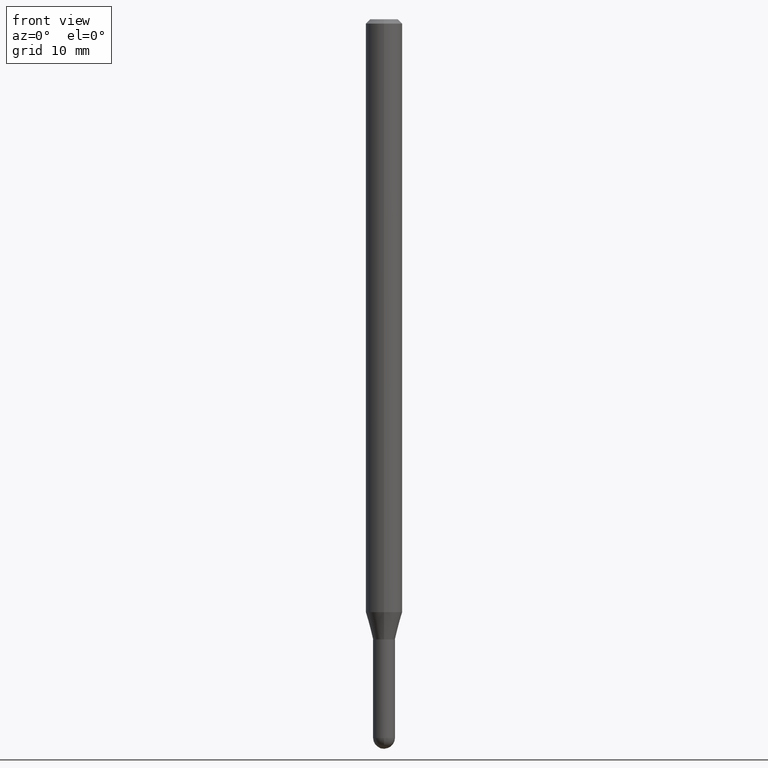
[diagram: clean part render]
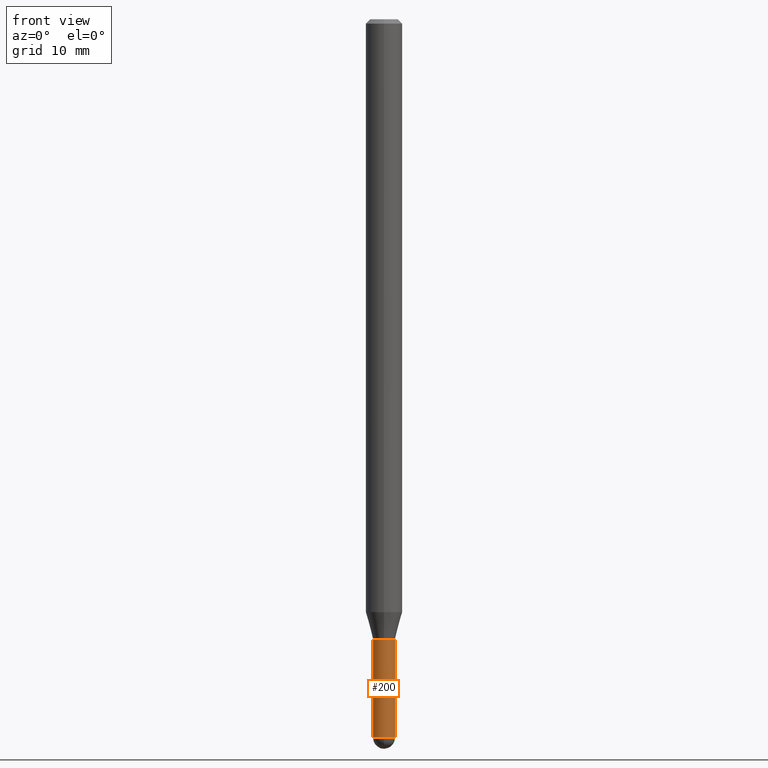
[diagram: same view with one face highlighted and labeled with its STEP entity id]
A machine part, front view. The second image highlights one B-rep face of the part: STEP entity #200.
In plain terms, the highlighted cylindrical surface (edge-blend (fillet) strip) has radius 0.9525 mm, axis along (-0, 0, 1).
Its self-contained STEP definition (entity closure, byte-faithful):
#32 = DIRECTION ( 'NONE',  ( -2.445468806185136877E-29, 3.491481338843145188E-15, 1.000000000000000000 ) ) ;
#44 = EDGE_LOOP ( 'NONE', ( #297, #128, #151, #377, #136 ) ) ;
#58 = EDGE_CURVE ( 'NONE', #252, #478, #306, .T. ) ;
#65 = VECTOR ( 'NONE', #309, 39.37007874015748143 ) ;
#128 = ORIENTED_EDGE ( 'NONE', *, *, #265, .T. ) ;
#130 = CARTESIAN_POINT ( 'NONE',  ( -0.03749999999999999861, -7.742131795061429304E-15, -2.125000000000000000 ) ) ;
#136 = ORIENTED_EDGE ( 'NONE', *, *, #503, .F. ) ;
#137 = AXIS2_PLACEMENT_3D ( 'NONE', #397, #166, #234 ) ;
#139 = CARTESIAN_POINT ( 'NONE',  ( -0.03749999999999999861, -7.742131795061429304E-15, -2.462500000000000355 ) ) ;
#143 = EDGE_CURVE ( 'NONE', #486, #252, #199, .T. ) ;
#151 = ORIENTED_EDGE ( 'NONE', *, *, #143, .T. ) ;
#154 = EDGE_CURVE ( 'NONE', #223, #407, #160, .T. ) ;
#159 = AXIS2_PLACEMENT_3D ( 'NONE', #432, #320, #426 ) ;
#160 = LINE ( 'NONE', #326, #479 ) ;
#166 = DIRECTION ( 'NONE',  ( -2.445468806185136597E-29, 3.491481338843145583E-15, 1.000000000000000000 ) ) ;
#199 = CIRCLE ( 'NONE', #137, 0.03749999999999999861 ) ;
#200 = ADVANCED_FACE ( 'NONE', ( #350 ), #322, .T. ) ;
#223 = VERTEX_POINT ( 'NONE', #139 ) ;
#227 = DIRECTION ( 'NONE',  ( 1.000000000000000000, -6.982962677686242256E-15, 0.000000000000000000 ) ) ;
#234 = DIRECTION ( 'NONE',  ( 1.000000000000000000, -6.982962677686242256E-15, 0.000000000000000000 ) ) ;
#241 = CARTESIAN_POINT ( 'NONE',  ( 0.000000000000000000, 0.000000000000000000, 0.000000000000000000 ) ) ;
#248 = DIRECTION ( 'NONE',  ( -2.445468806185136597E-29, 3.491481338843145583E-15, 1.000000000000000000 ) ) ;
#252 = VERTEX_POINT ( 'NONE', #493 ) ;
#265 = EDGE_CURVE ( 'NONE', #223, #486, #382, .T. ) ;
#291 = AXIS2_PLACEMENT_3D ( 'NONE', #305, #406, #227 ) ;
#297 = ORIENTED_EDGE ( 'NONE', *, *, #154, .F. ) ;
#305 = CARTESIAN_POINT ( 'NONE',  ( 6.021966935230899318E-29, -8.597772796901246653E-15, -2.462500000000000355 ) ) ;
#306 = LINE ( 'NONE', #455, #65 ) ;
#309 = DIRECTION ( 'NONE',  ( -2.445468806185136877E-29, 3.491481338843145188E-15, 1.000000000000000000 ) ) ;
#320 = DIRECTION ( 'NONE',  ( -2.445468806185136597E-29, 3.491481338843145583E-15, 1.000000000000000000 ) ) ;
#322 = CYLINDRICAL_SURFACE ( 'NONE', #424, 0.03749999999999999861 ) ;
#326 = CARTESIAN_POINT ( 'NONE',  ( -0.03749999999999999861, 2.664535259100375598E-16, -1.844600658845589808E-30 ) ) ;
#350 = FACE_OUTER_BOUND ( 'NONE', #44, .T. ) ;
#376 = CIRCLE ( 'NONE', #159, 0.03749999999999999861 ) ;
#377 = ORIENTED_EDGE ( 'NONE', *, *, #58, .T. ) ;
#381 = CARTESIAN_POINT ( 'NONE',  ( 0.03749999999999999861, -7.681258945454920203E-15, -2.125000000000000000 ) ) ;
#382 = CIRCLE ( 'NONE', #291, 0.03749999999999999861 ) ;
#397 = CARTESIAN_POINT ( 'NONE',  ( 6.021966935230899318E-29, -8.597772796901246653E-15, -2.462500000000000355 ) ) ;
#406 = DIRECTION ( 'NONE',  ( -2.445468806185136597E-29, 3.491481338843145583E-15, 1.000000000000000000 ) ) ;
#407 = VERTEX_POINT ( 'NONE', #130 ) ;
#412 = CARTESIAN_POINT ( 'NONE',  ( -2.664535259099770148E-16, -0.03750000000000855427, -2.462500000000000355 ) ) ;
#424 = AXIS2_PLACEMENT_3D ( 'NONE', #241, #248, #476 ) ;
#426 = DIRECTION ( 'NONE',  ( 1.000000000000000000, -6.982962677686268288E-15, 0.000000000000000000 ) ) ;
#432 = CARTESIAN_POINT ( 'NONE',  ( 5.196621213143415268E-29, -7.419397845041685201E-15, -2.125000000000000000 ) ) ;
#455 = CARTESIAN_POINT ( 'NONE',  ( 0.03749999999999999861, -2.618611004132350016E-16, 1.828566290923475922E-30 ) ) ;
#476 = DIRECTION ( 'NONE',  ( 1.000000000000000000, -6.982962677686266711E-15, 4.876176775795935793E-29 ) ) ;
#478 = VERTEX_POINT ( 'NONE', #381 ) ;
#479 = VECTOR ( 'NONE', #32, 39.37007874015748143 ) ;
#486 = VERTEX_POINT ( 'NONE', #412 ) ;
#493 = CARTESIAN_POINT ( 'NONE',  ( 0.03749999999999999861, -8.270446421384699351E-15, -2.462500000000000355 ) ) ;
#503 = EDGE_CURVE ( 'NONE', #407, #478, #376, .T. ) ;